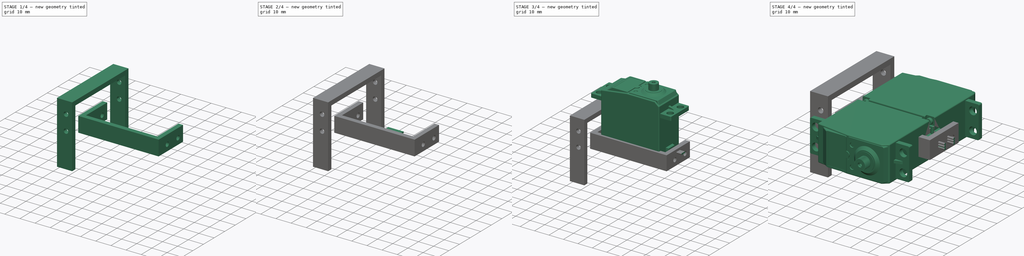
[diagram: build sequence overview — one tinted view per stage of 4, left to right]
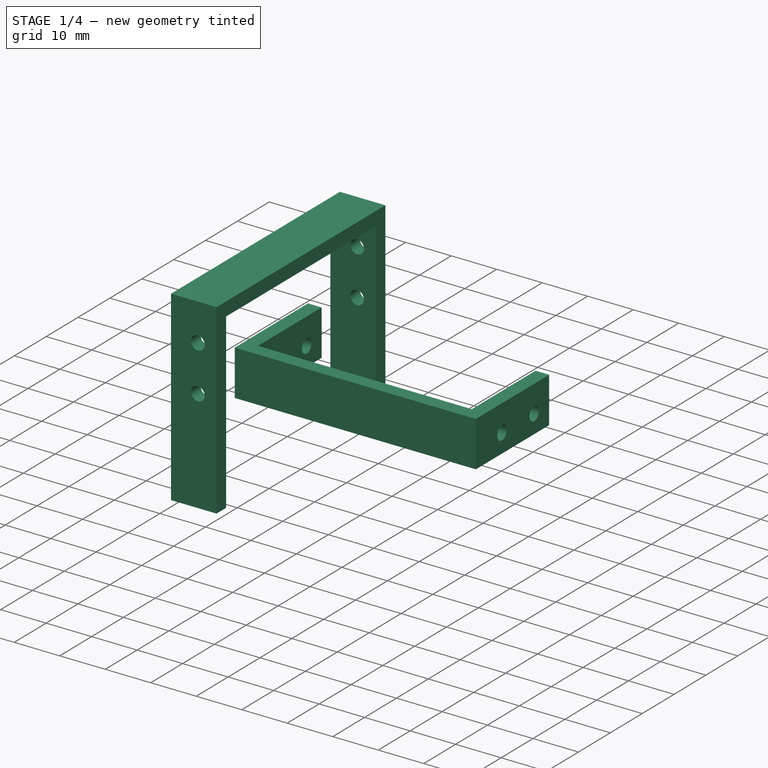
[diagram: stage 1 of 4 — iso view after this stage's code; geometry added in this stage tinted green]
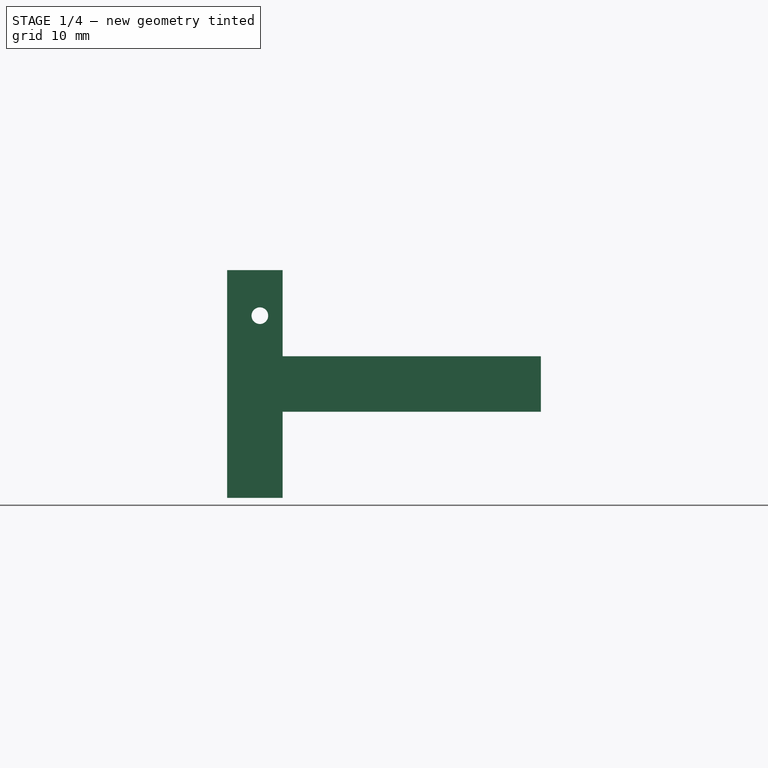
[diagram: stage 1 of 4 — front view after this stage's code; geometry added in this stage tinted green]
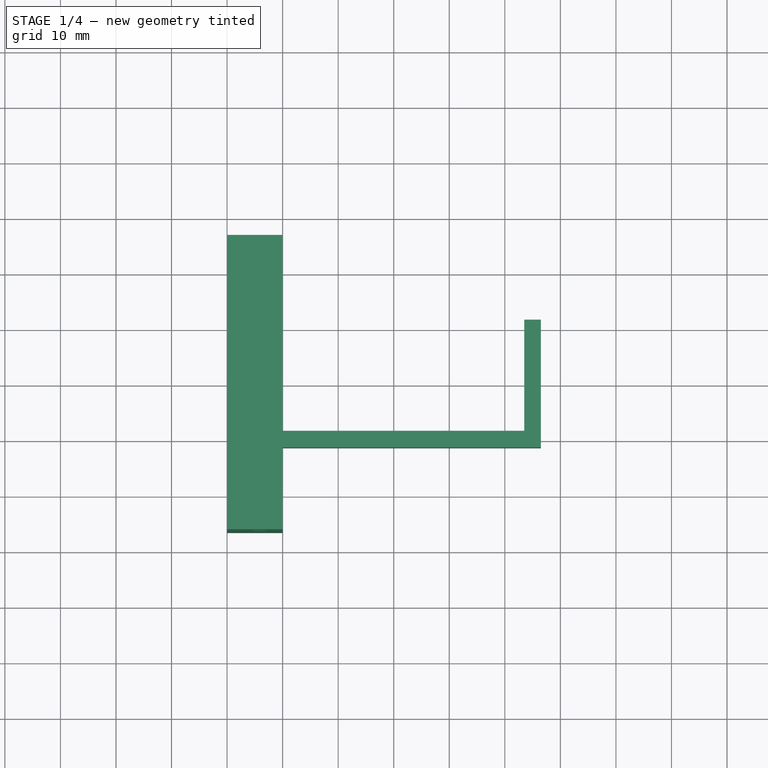
[diagram: stage 1 of 4 — top view after this stage's code; geometry added in this stage tinted green]
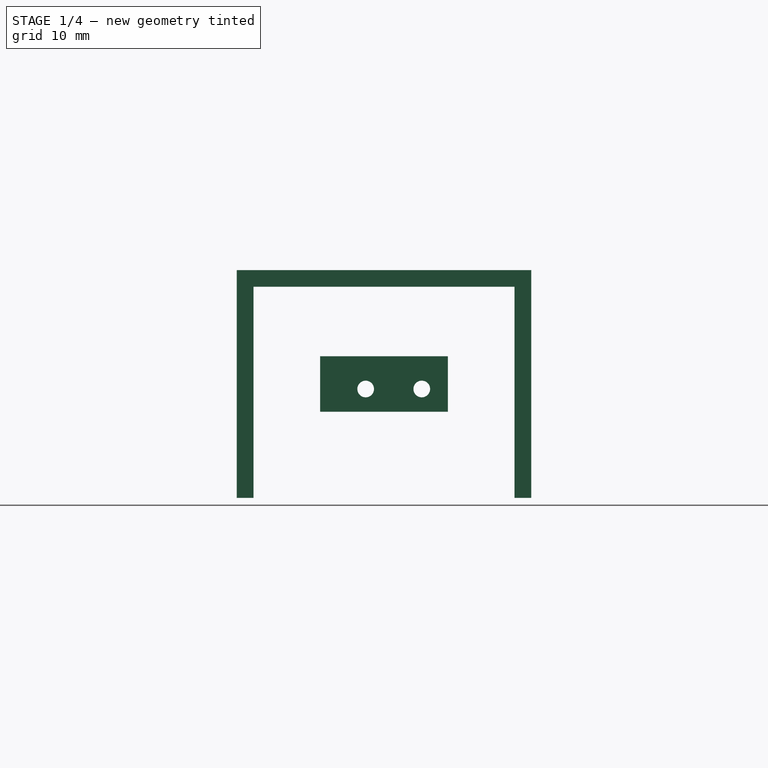
[diagram: stage 1 of 4 — right view after this stage's code; geometry added in this stage tinted green]
FCSTD DOCUMENT  (FreeCAD 0.14R3702 (Git))
Label: miniskybot-v0_1
License: CC-BY 3.0
LicenseURL: http://creativecommons.org/licenses/by/3.0/
objects: Part::Feature×19, Part::MultiFuse×5, Sketcher::SketchObject×4, Part::Cylinder×3, Part::Compound×2, PartDesign::Pad×2, PartDesign::Pocket×2, App::DocumentObjectGroup×2
note: 41 computed .brp shape members not serialized (recipe doc carries the construction recipe); baked Part::Feature solids carry a one-line shape summary decoded from their .brp

FEATURE [Sketcher::SketchObject] Sketch  label="front-sketch"
  Placement = pos=(0,0,0) rot=(1,0,0;3.14159rad)
  sketch-geometry (8):
    g0: LineSegment StartX=-23.5 StartY=-11.5 StartZ=0 EndX=-23.5 EndY=8.5 EndZ=0
    g1: LineSegment StartX=-23.5 StartY=8.5 StartZ=0 EndX=23.5 EndY=8.5 EndZ=0
    g2: LineSegment StartX=23.5 StartY=8.5 StartZ=0 EndX=23.5 EndY=-11.5 EndZ=0
    g3: LineSegment StartX=23.5 StartY=-11.5 StartZ=0 EndX=26.5 EndY=-11.5 EndZ=0
    g4: LineSegment StartX=26.5 StartY=-11.5 StartZ=0 EndX=26.5 EndY=11.5 EndZ=0
    g5: LineSegment StartX=26.5 StartY=11.5 StartZ=0 EndX=-26.5 EndY=11.5 EndZ=0
    g6: LineSegment StartX=-26.5 StartY=11.5 StartZ=0 EndX=-26.5 EndY=-11.5 EndZ=0
    g7: LineSegment StartX=-26.5 StartY=-11.5 StartZ=0 EndX=-23.5 EndY=-11.5 EndZ=0
  constraints (23):
    c: Vertical(g0)
    c: Coincident(g0,g1)
    c: Horizontal(g1)
    c: Coincident(g1,g2)
    c: Vertical(g2)
    c: Coincident(g2,g3)
    c: Coincident(g3,g4)
    c: Vertical(g4)
    c: Coincident(g4,g5)
    c: Horizontal(g5)
    c: Coincident(g5,g6)
    c: Vertical(g6)
    c: Coincident(g6,g7)
    c: Horizontal(g7)
    c: Coincident(g7,g0)
    c: Horizontal(g3)
    c: Symmetric(g0,g2,g-2)
    c: Symmetric(g6,g3,g-2)
    c: Symmetric(g6,g5,g-1)
    c: DistanceX(g5) = -53
    c: DistanceX(g7) = 3
    c: DistanceY(g0,g5) = 3
    c: DistanceY(g4) = 23
FEATURE [PartDesign::Pad] Pad  label="front"
  Length = 10
  Length2 = 100
  Midplane = true
  Placement = pos=(0,0,0) rot=(1,0,0;3.14159rad)
  Sketch = -> Sketch
  Type = 0
FEATURE [Sketcher::SketchObject] Sketch001  label="drills-sketch"
  ExternalGeometry = -> [Pad]
  Placement = pos=(26.5,0,0) rot=(0.57735,-0.57735,0.57735;4.18879rad)
  Support = -> Pad [Face5]
  sketch-geometry (6):
    g0: Circle CenterX=-6.8 CenterY=0.9 CenterZ=0 NormalX=0 NormalY=0 NormalZ=1 Radius=1.5
    g1: LineSegment [constr] StartX=-6.8 StartY=0.9 StartZ=0 EndX=-6.8 EndY=5 EndZ=0
    g2: GeomPoint [constr] X=-6.8 Y=2.4 Z=0
    g3: Circle CenterX=3.3 CenterY=0.9 CenterZ=0 NormalX=0 NormalY=0 NormalZ=1 Radius=1.5
    g4: LineSegment [constr] StartX=-6.8 StartY=0.9 StartZ=0 EndX=3.3 EndY=0.9 EndZ=0
    g5: LineSegment [constr] StartX=3.3 StartY=0.9 StartZ=0 EndX=11.5 EndY=0.9 EndZ=0
  constraints (16):
    c: Radius(g0) = 1.5
    c: Vertical(g1)
    c: PointOnObject(g1,g-3)
    c: Coincident(g1,g0)
    c: PointOnObject(g2,g1)
    c: PointOnObject(g2,g0)
    c: DistanceY(g2,g1) = 2.6
    c: Equal(g3,g0)
    c: Horizontal(g4)
    c: Coincident(g4,g0)
    c: Coincident(g4,g3)
    c: DistanceX(g4) = 10.1
    c: Horizontal(g5)
    c: Coincident(g5,g3)
    c: PointOnObject(g5,g-4)
    c: DistanceX(g5) = 8.2
FEATURE [PartDesign::Pocket] Pocket  label="front-drill"
  Length = 5
  Placement = pos=(0,0,0) rot=(1,0,0;3.14159rad)
  Sketch = -> Sketch001
  Type = 1
FEATURE [App::DocumentObjectGroup] Group  label="Front-U-src"
  Group = -> [Pad,Pocket]
FEATURE [Part::Feature] Pocket001  label="front-U"
  Placement = pos=(25.35,-0.7,1.75) rot=(0.57735,-0.57735,-0.57735;2.0944rad)
  shape: bbox 10 x 53 x 23 mm, 14 faces (baked)
FEATURE [Sketcher::SketchObject] Sketch002  label="Rear-U-sketch"
  Placement = pos=(-25,0,0) rot=(0,-1,0;1.5708rad)
  sketch-geometry (8):
    g0: LineSegment StartX=-20.5 StartY=23.5 StartZ=0 EndX=17.5 EndY=23.5 EndZ=0
    g1: LineSegment StartX=17.5 StartY=23.5 StartZ=0 EndX=17.5 EndY=-23.5 EndZ=0
    g2: LineSegment StartX=17.5 StartY=-23.5 StartZ=0 EndX=-20.5 EndY=-23.5 EndZ=0
    g3: LineSegment StartX=-20.5 StartY=-23.5 StartZ=0 EndX=-20.5 EndY=-26.5 EndZ=0
    g4: LineSegment StartX=-20.5 StartY=-26.5 StartZ=0 EndX=20.5 EndY=-26.5 EndZ=0
    g5: LineSegment StartX=20.5 StartY=-26.5 StartZ=0 EndX=20.5 EndY=26.5 EndZ=0
    g6: LineSegment StartX=20.5 StartY=26.5 StartZ=0 EndX=-20.5 EndY=26.5 EndZ=0
    g7: LineSegment StartX=-20.5 StartY=26.5 StartZ=0 EndX=-20.5 EndY=23.5 EndZ=0
  constraints (24):
    c: Horizontal(g0)
    c: Coincident(g0,g1)
    c: Vertical(g1)
    c: Coincident(g1,g2)
    c: Horizontal(g2)
    c: Coincident(g2,g3)
    c: Coincident(g3,g4)
    c: Horizontal(g4)
    c: Coincident(g4,g5)
    c: Vertical(g5)
    c: Coincident(g5,g6)
    c: Horizontal(g6)
    c: Coincident(g6,g7)
    c: Vertical(g7)
    c: Coincident(g7,g0)
    c: Vertical(g3)
    c: Symmetric(g0,g1,g-1)
    c: Symmetric(g5,g4,g-1)
    c: Symmetric(g6,g5,g-2)
    c: DistanceY(g7) = -3
    c: DistanceY(g5) = 53
    c: DistanceX(g0,g5) = 3
    c: DistanceX(g4) = 41
    c: Equal(g4,g6)
FEATURE [PartDesign::Pad] Pad001  label="Rear"
  Length = 10
  Length2 = 100
  Midplane = true
  Placement = pos=(-25,0,0) rot=(0,-1,0;1.5708rad)
  Sketch = -> Sketch002
  Type = 0
FEATURE [Sketcher::SketchObject] Sketch003  label="rear-drill-sketch"
  ExternalGeometry = -> [Pad001]
  Placement = pos=(-25,-26.5,0) rot=(0.57735,-0.57735,0.57735;2.0944rad)
  Support = -> Pad001 [Face5]
  sketch-geometry (6):
    g0: Circle CenterX=2.2 CenterY=-0.9 CenterZ=0 NormalX=0 NormalY=0 NormalZ=1 Radius=1.5
    g1: Circle CenterX=12.3 CenterY=-0.9 CenterZ=0 NormalX=0 NormalY=0 NormalZ=1 Radius=1.5
    g2: LineSegment [constr] StartX=12.3 StartY=-0.9 StartZ=0 EndX=12.3 EndY=-5 EndZ=0
    g3: GeomPoint [constr] X=12.3 Y=-2.4 Z=0
    g4: LineSegment [constr] StartX=2.2 StartY=-0.9 StartZ=0 EndX=12.3 EndY=-0.9 EndZ=0
    g5: LineSegment [constr] StartX=12.3 StartY=-0.9 StartZ=0 EndX=20.5 EndY=-0.9 EndZ=0
  constraints (16):
    c: Equal(g0,g1)
    c: Vertical(g2)
    c: Coincident(g2,g1)
    c: PointOnObject(g2,g-3)
    c: Radius(g1) = 1.5
    c: PointOnObject(g3,g2)
    c: PointOnObject(g3,g1)
    c: DistanceY(g3,g2) = -2.6
    c: Horizontal(g4)
    c: Coincident(g4,g1)
    c: Coincident(g4,g0)
    c: DistanceX(g4) = 10.1
    c: Horizontal(g5)
    c: Coincident(g5,g1)
    c: PointOnObject(g5,g-4)
    c: DistanceX(g5) = 8.2
FEATURE [PartDesign::Pocket] Pocket002  label="rear-drill"
  Length = 5
  Placement = pos=(-25,0,0) rot=(0,-1,0;1.5708rad)
  Sketch = -> Sketch003
  Type = 1
FEATURE [App::DocumentObjectGroup] Group001  label="Rear-U-src"
  Group = -> [Pad001,Pocket002]
FEATURE [Part::Feature] Pocket003  label="Rear-U"
  Placement = pos=(-25.35,-0.7,-7.25) rot=(0,-1,0;1.5708rad)
  shape: bbox 10 x 53 x 41 mm, 14 faces (baked)
FEATURE [Part::Feature] Pocket004  label="M3x8-cyl001"
  Placement = pos=(24.45,-21.9,5.05) rot=(0.809976,0,0.586462;3.14159rad)
  shape: bbox 5.5 x 9.86 x 5.5 mm, 9 faces (baked)
FEATURE [Part::Feature] Pocket005  label="M3x8-cyl002"
  Placement = pos=(24.45,-21.9,-5.05) rot=(0.809976,0,0.586462;3.14159rad)
  shape: bbox 5.5 x 9.86 x 5.5 mm, 9 faces (baked)
FEATURE [Part::Feature] Pocket006  label="M3x8-cyl003"
  Placement = pos=(-24.45,-21.9,5.05) rot=(0.809976,0,0.586462;3.14159rad)
  shape: bbox 5.5 x 9.86 x 5.5 mm, 9 faces (baked)
FEATURE [Part::Feature] Pocket007  label="M3x8-cyl004"
  Placement = pos=(-24.45,-21.9,-5.05) rot=(0.809976,0,0.586462;3.14159rad)
  shape: bbox 5.5 x 9.86 x 5.5 mm, 9 faces (baked)
FEATURE [Part::Feature] Pocket008  label="M3x8-cyl005"
  Placement = pos=(24.45,20.5,5.05) rot=(0,1,0;4.77884rad)
  shape: bbox 5.5 x 9.86 x 5.5 mm, 9 faces (baked)
FEATURE [Part::Feature] Pocket009  label="M3x8-cyl006"
  Placement = pos=(24.45,20.5,-5.05) rot=(0,-1,0;1.50435rad)
  shape: bbox 5.5 x 9.86 x 5.5 mm, 9 faces (baked)
FEATURE [Part::Feature] Pocket010  label="M3x8-cyl007"
  Placement = pos=(-24.45,20.5,5.05) rot=(0,-1,0;1.50435rad)
  shape: bbox 5.5 x 9.86 x 5.5 mm, 9 faces (baked)
FEATURE [Part::Feature] Pocket011  label="M3x8-cyl008"
  Placement = pos=(-24.45,20.5,-5.05) rot=(0,-1,0;1.50435rad)
  shape: bbox 5.5 x 9.86 x 5.5 mm, 9 faces (baked)
FEATURE [Part::Feature] Cut  label="M3-hex-nut-final001"
  Placement = pos=(24.45,-23.075,5.05) rot=(0.095318,0.703887,-0.703887;2.95153rad)
  shape: bbox 6.293 x 2.25 x 6.293 mm, 13 faces (baked)
FEATURE [Part::Feature] Cut001  label="M3-hex-nut-final002"
  Placement = pos=(24.45,-23.075,-5.05) rot=(0.095318,0.703887,-0.703887;2.95153rad)
  shape: bbox 6.293 x 2.25 x 6.293 mm, 13 faces (baked)
FEATURE [Part::Feature] Cut002  label="M3-hex-nut-final003"
  Placement = pos=(-24.45,-23.075,5.05) rot=(0.095318,0.703887,-0.703887;2.95153rad)
  shape: bbox 6.293 x 2.25 x 6.293 mm, 13 faces (baked)
FEATURE [Part::Feature] Cut003  label="M3-hex-nut-final004"
  Placement = pos=(24.45,21.675,-5.05) rot=(0.095318,0.703887,-0.703887;2.95153rad)
  shape: bbox 6.293 x 2.25 x 6.293 mm, 13 faces (baked)
FEATURE [Part::Feature] Cut004  label="M3-hex-nut-final005"
  Placement = pos=(-24.45,-23.075,-5.05) rot=(0.095318,0.703887,-0.703887;2.95153rad)
  shape: bbox 6.293 x 2.25 x 6.293 mm, 13 faces (baked)
FEATURE [Part::Feature] Cut005  label="M3-hex-nut-final006"
  Placement = pos=(-24.45,21.675,-5.05) rot=(0.095318,0.703887,-0.703887;2.95153rad)
  shape: bbox 6.293 x 2.25 x 6.293 mm, 13 faces (baked)
FEATURE [Part::Feature] Cut006  label="M3-hex-nut-final007"
  Placement = pos=(24.45,21.675,5.05) rot=(0.095318,0.703887,-0.703887;2.95153rad)
  shape: bbox 6.293 x 2.25 x 6.293 mm, 13 faces (baked)
FEATURE [Part::Feature] Cut007  label="M3-hex-nut-final008"
  Placement = pos=(-24.45,21.675,5.05) rot=(0.095318,0.703887,-0.703887;2.95153rad)
  shape: bbox 6.293 x 2.25 x 6.293 mm, 13 faces (baked)
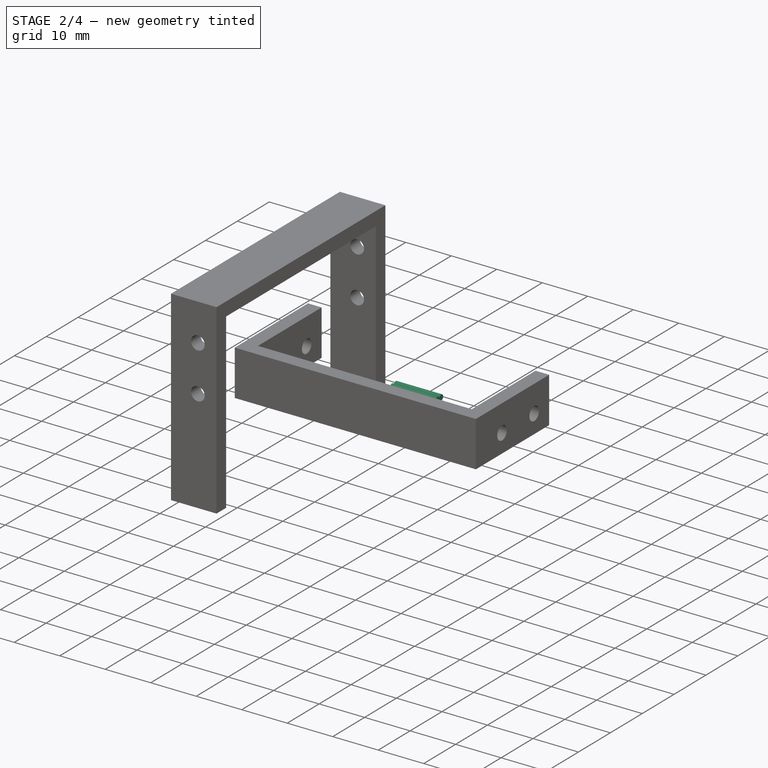
[diagram: stage 2 of 4 — iso view after this stage's code; geometry added in this stage tinted green]
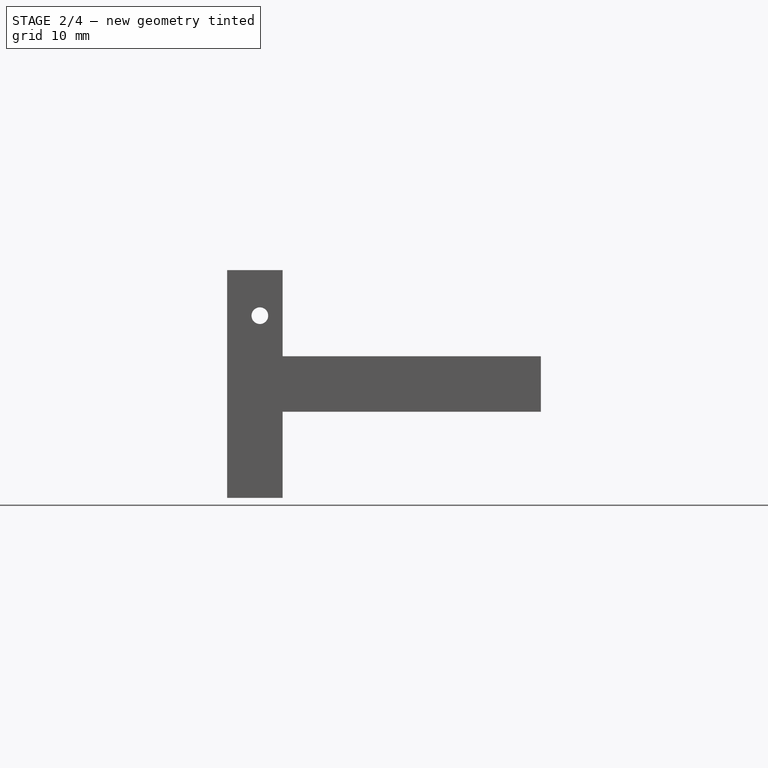
[diagram: stage 2 of 4 — front view after this stage's code; geometry added in this stage tinted green]
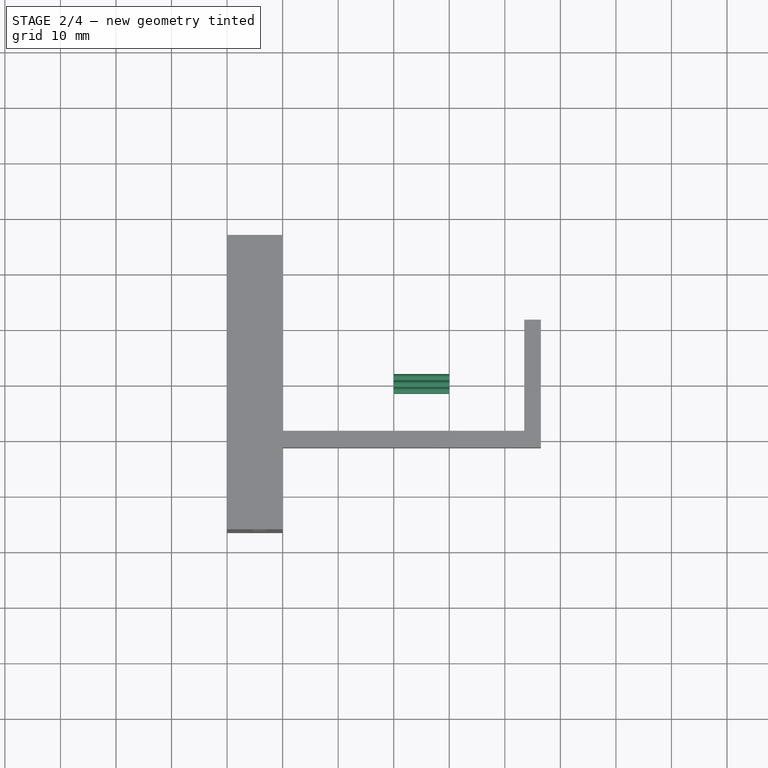
[diagram: stage 2 of 4 — top view after this stage's code; geometry added in this stage tinted green]
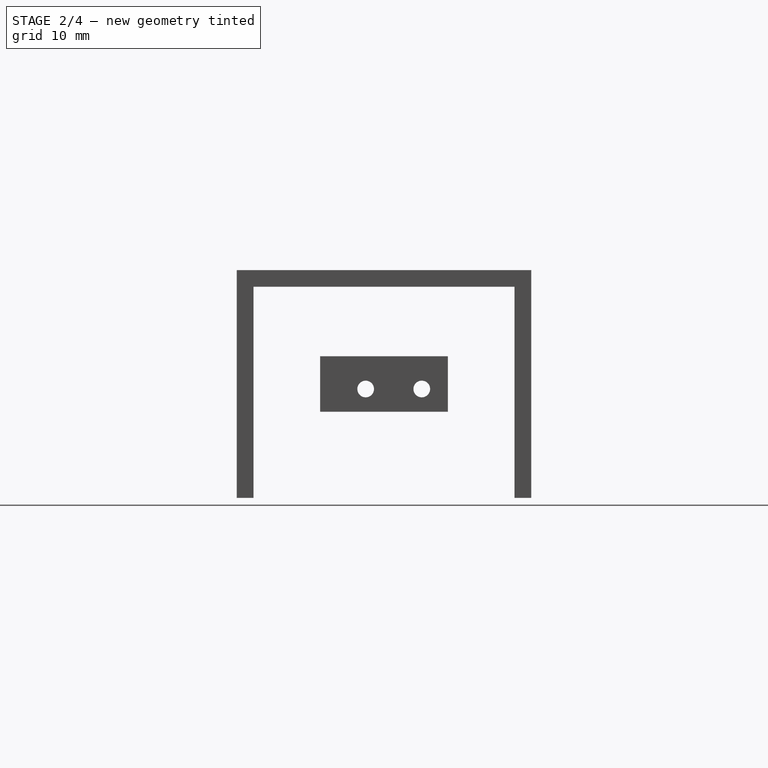
[diagram: stage 2 of 4 — right view after this stage's code; geometry added in this stage tinted green]
FEATURE [Part::Cylinder] Cylinder  label="white-wire"
  Angle = 360
  Height = 10
  Placement = pos=(0,1.2,0) rot=(0,1,0;1.5708rad)
  Radius = 0.6
FEATURE [Part::Cylinder] Cylinder001  label="red-wire"
  Angle = 360
  Height = 10
  Placement = pos=(0,0,0) rot=(0,1,0;1.5708rad)
  Radius = 0.6
FEATURE [Part::Cylinder] Cylinder002  label="blck-wire"
  Angle = 360
  Height = 10
  Placement = pos=(0,-1.2,0) rot=(0,1,0;1.5708rad)
  Radius = 0.6
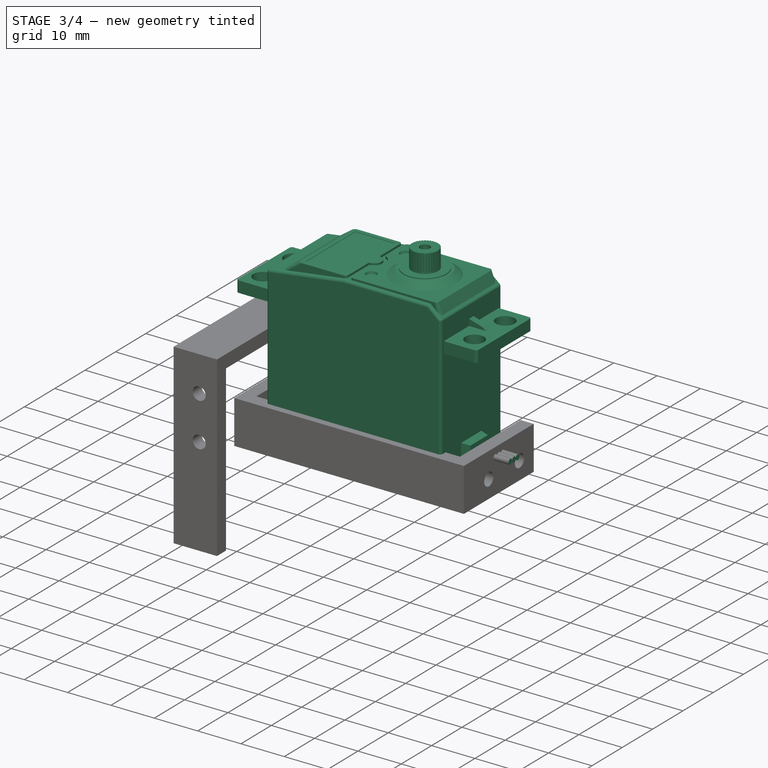
[diagram: stage 3 of 4 — iso view after this stage's code; geometry added in this stage tinted green]
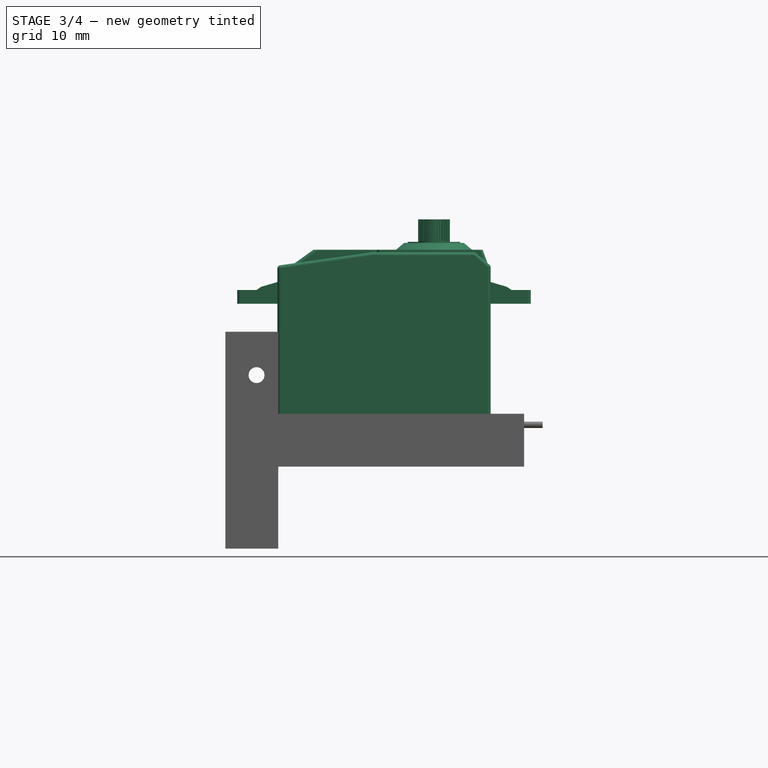
[diagram: stage 3 of 4 — front view after this stage's code; geometry added in this stage tinted green]
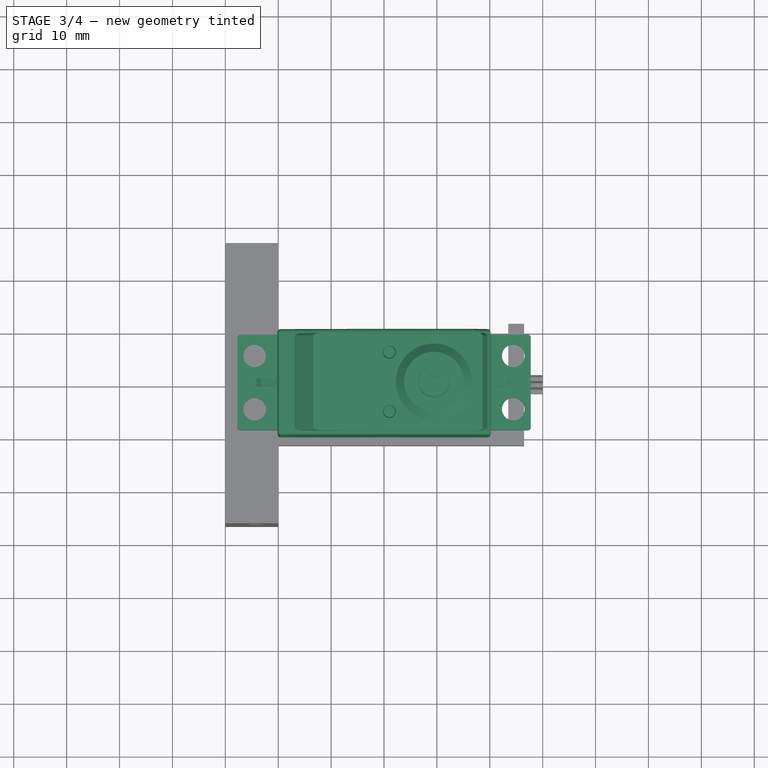
[diagram: stage 3 of 4 — top view after this stage's code; geometry added in this stage tinted green]
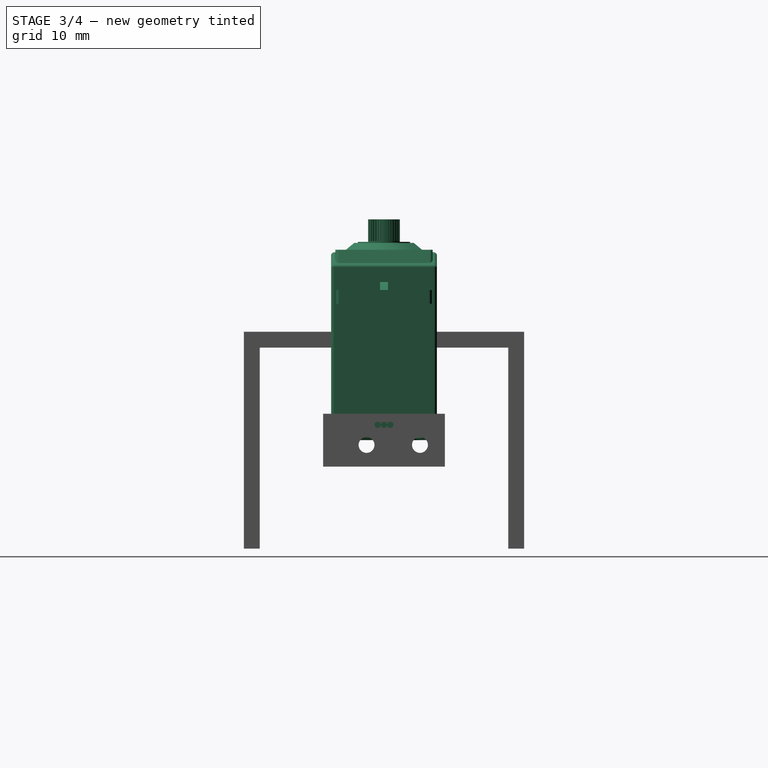
[diagram: stage 3 of 4 — right view after this stage's code; geometry added in this stage tinted green]
FEATURE [Part::Feature] Fusion002  label="servo-screws-four"
  shape: bbox 38.86 x 18.56 x 28.9 mm, 76 faces, 4 solids (baked)
FEATURE [Part::MultiFuse] Fusion003  label="Servo-no-screws"
FEATURE [Part::MultiFuse] Fusion004  label="Servo-Futaba3003-final001"
  Shapes = -> [Fusion003,Fusion002]
FEATURE [Part::MultiFuse] Fusion005  label="servo-wires001"
  Placement = pos=(20,0,2.9) rot=(0,0,1;0rad)
  Shapes = -> [Cylinder001,Cylinder002,Cylinder]
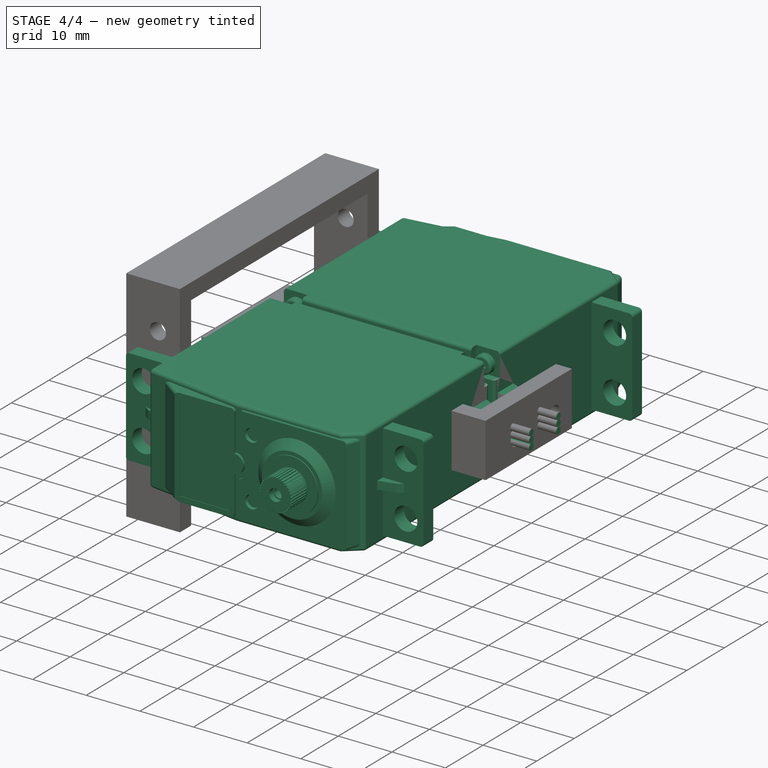
[diagram: stage 4 of 4 — iso view after this stage's code; geometry added in this stage tinted green]
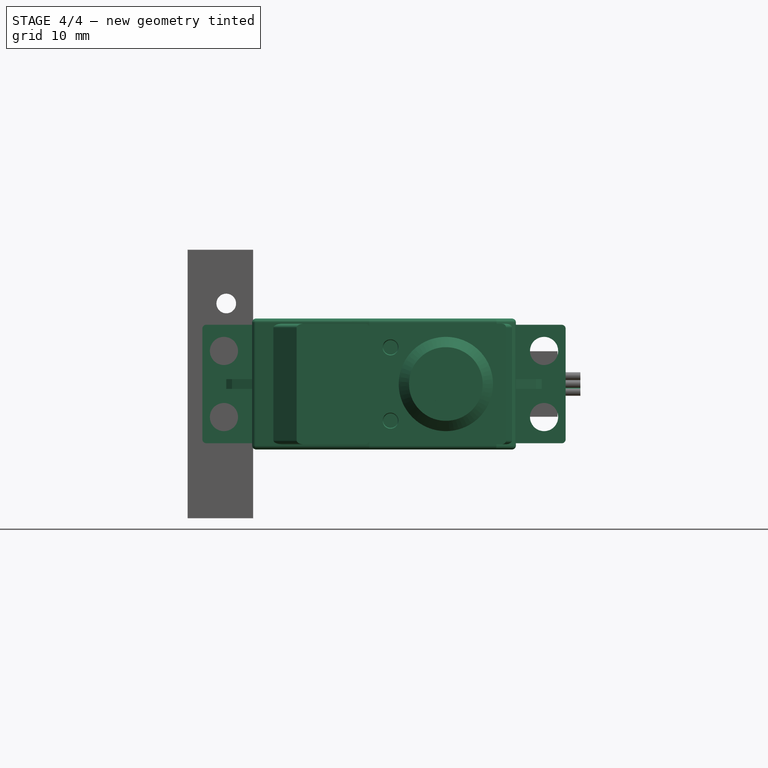
[diagram: stage 4 of 4 — front view after this stage's code; geometry added in this stage tinted green]
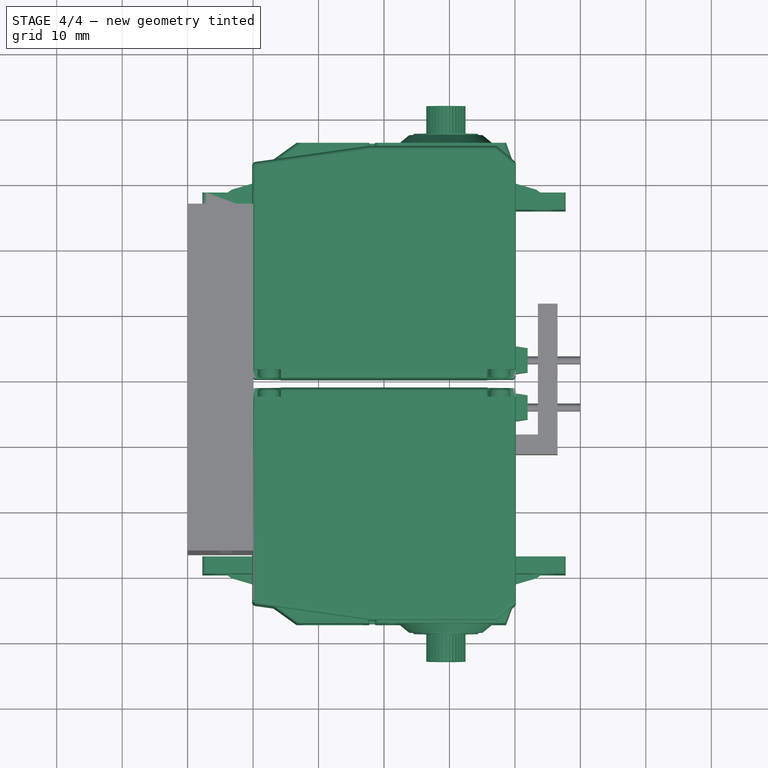
[diagram: stage 4 of 4 — top view after this stage's code; geometry added in this stage tinted green]
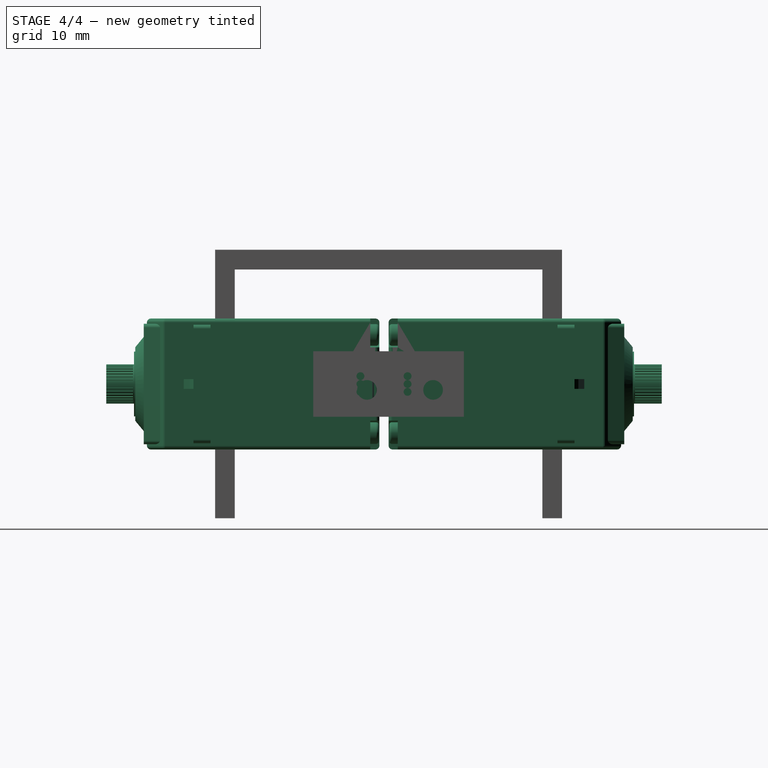
[diagram: stage 4 of 4 — right view after this stage's code; geometry added in this stage tinted green]
FEATURE [Part::MultiFuse] Fusion  label="servo-wires"
  Placement = pos=(20,0,2.9) rot=(0,0,1;0rad)
  Shapes = -> [Cylinder001,Cylinder002,Cylinder]
FEATURE [Part::MultiFuse] Fusion001  label="Servo-Futaba3003-final"
  Shapes = -> [Fusion003,Fusion002]
FEATURE [Part::Compound] Compound  label="Servo1"
  Links = -> [Fusion,Fusion001]
  Placement = pos=(0,-1.4,0) rot=(1,0,0;1.5708rad)
FEATURE [Part::Compound] Compound001  label="Servo2"
  Links = -> [Fusion005,Fusion004]
  Placement = pos=(0,0,0) rot=(-1,0,0;1.5708rad)
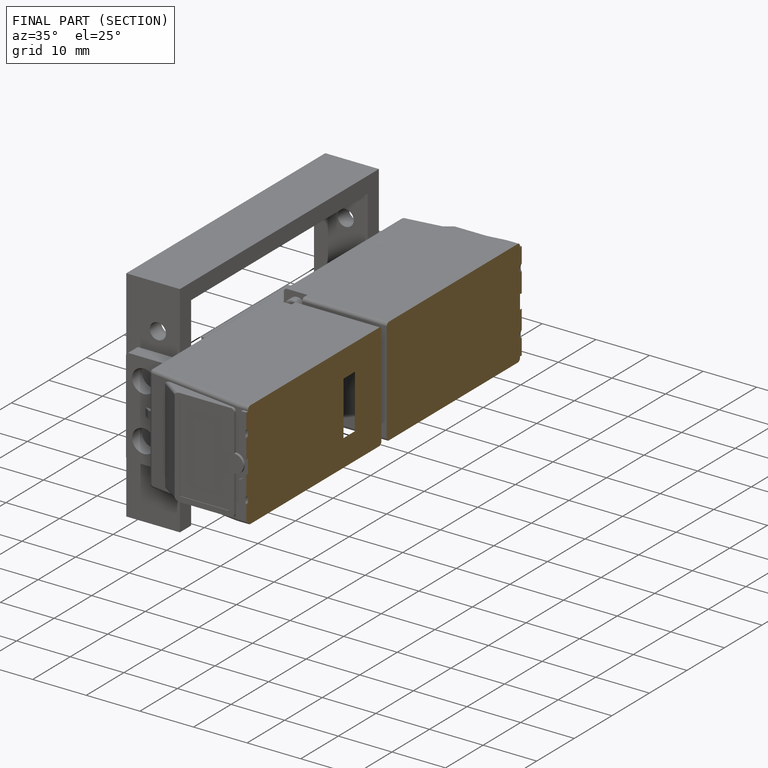
[diagram: finished part — half-section view (interior)]
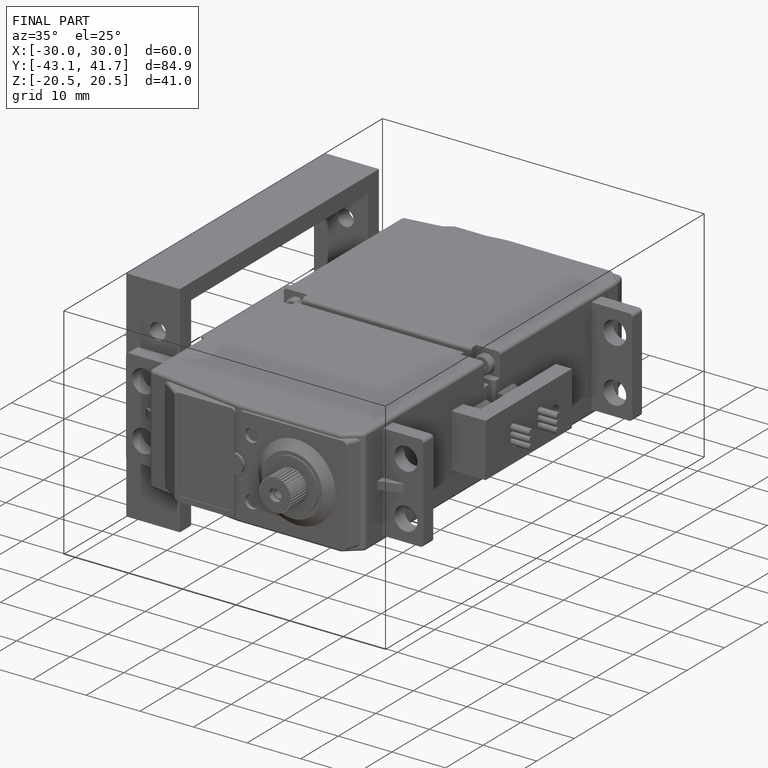
[diagram: finished part — iso view with bounding-box wireframe]
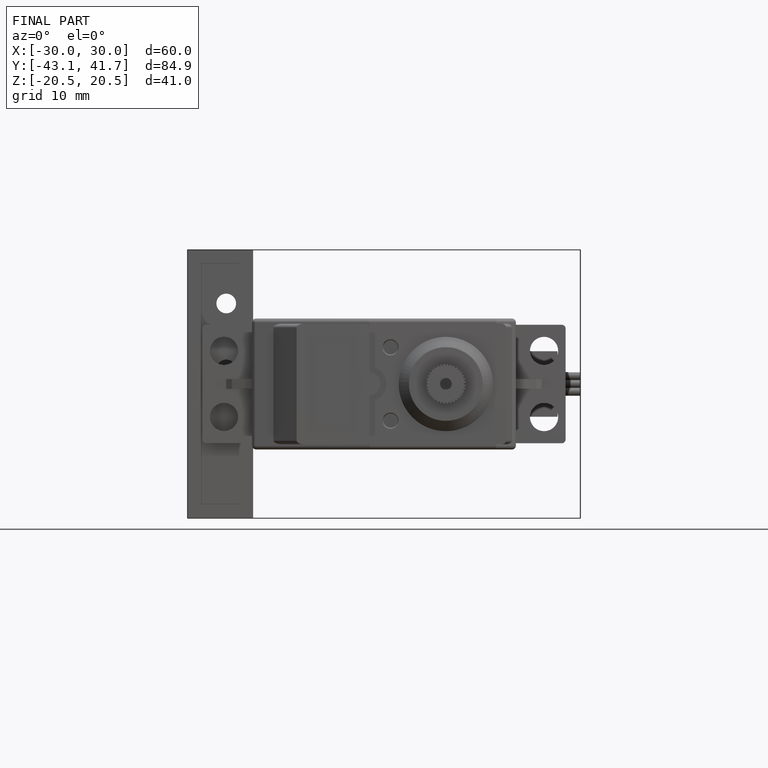
[diagram: finished part — front view with bounding-box wireframe]
